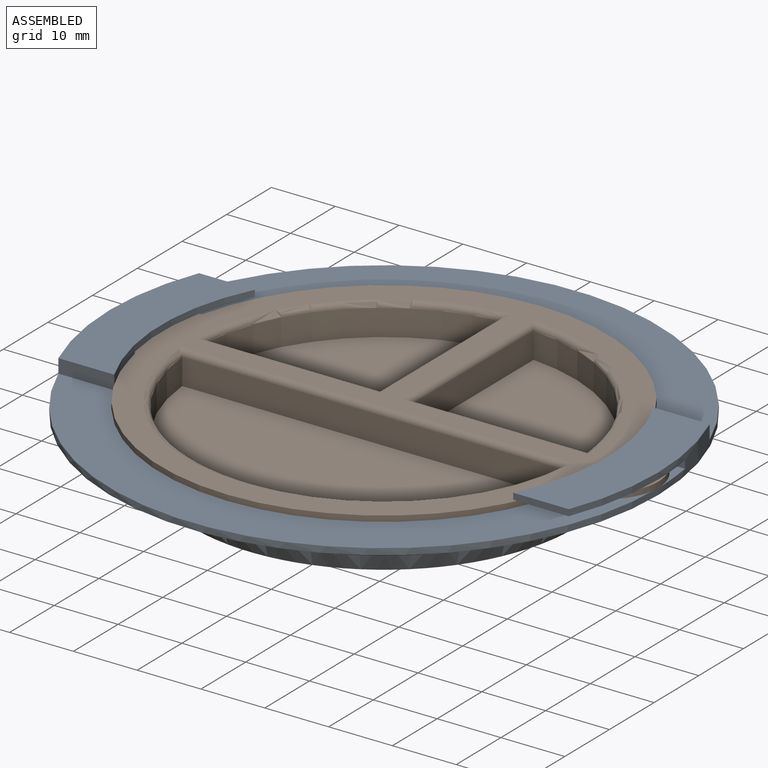
[diagram: assembled view]
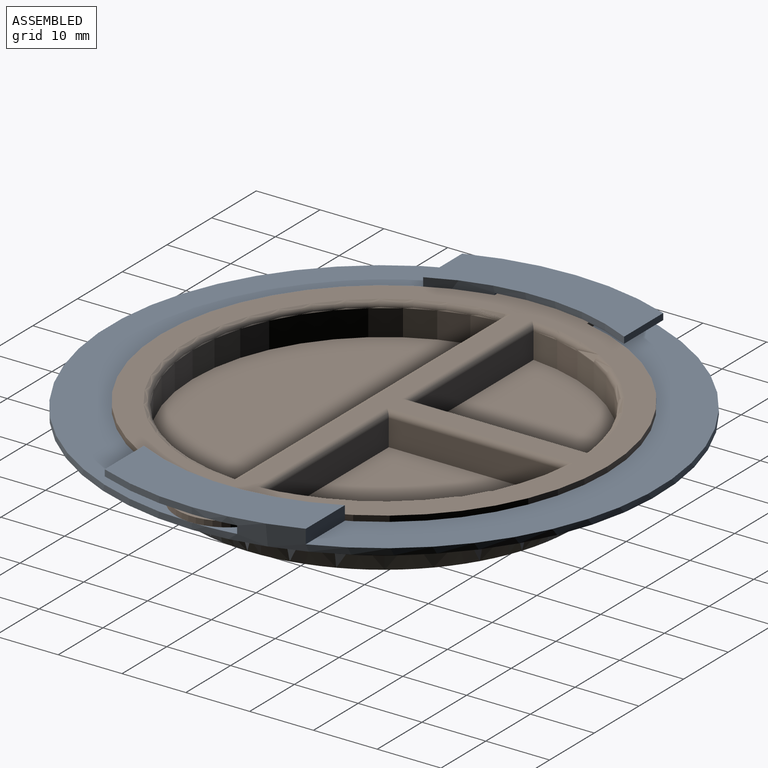
[diagram: assembled view, second angle]
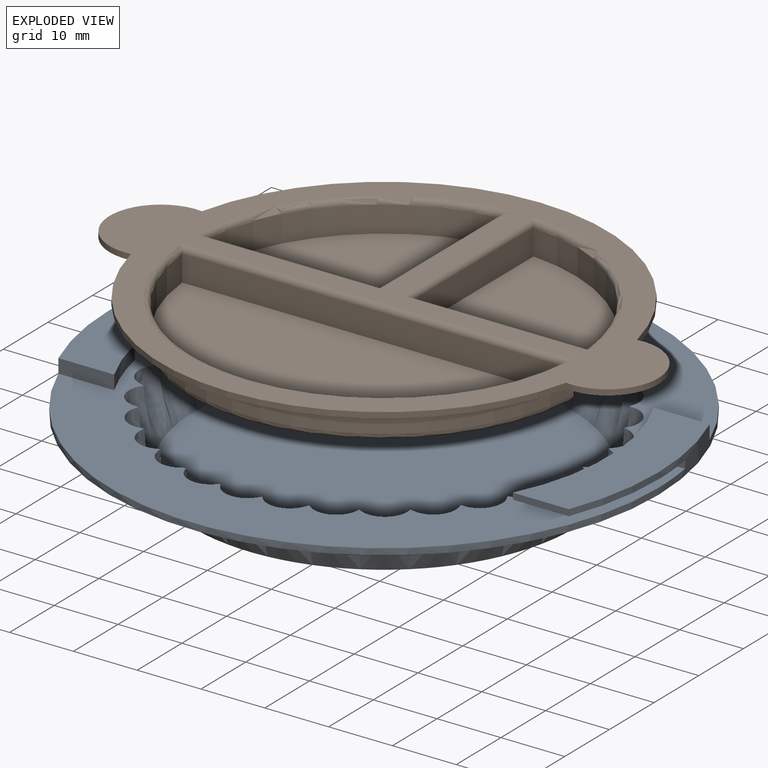
[diagram: exploded view]
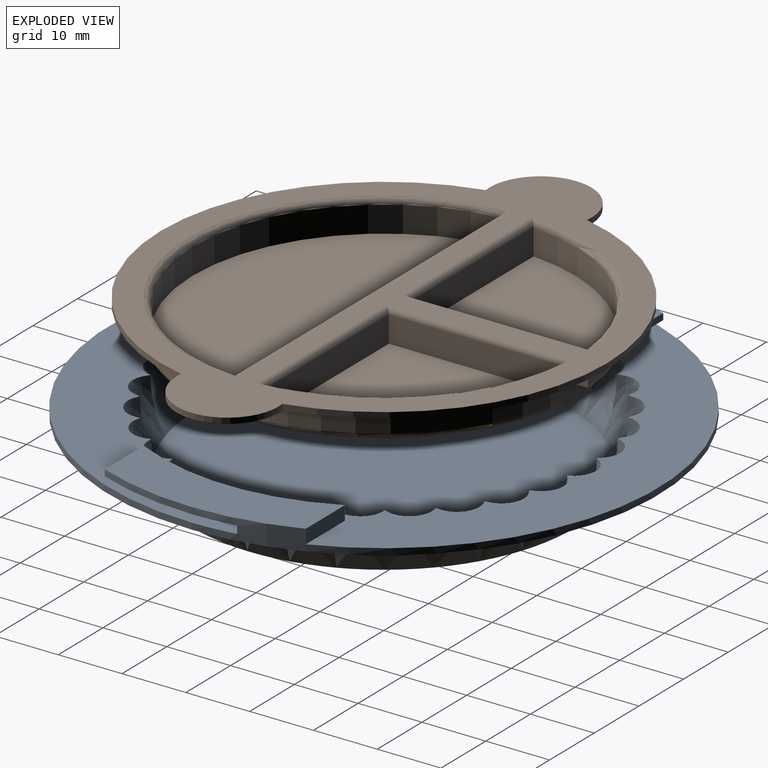
[diagram: exploded view, second angle]
ASSEMBLY  parts=2 mates=2
PART A: 78 faces, bbox 87x87x12.3 mm
  f0: plane 86.13x86.13mm, normal (0,0,1), area 2266.2mm2, adj f2,f3,f4,f5,f6,f7,f8,f9
  f1: plane 59.7x59.63mm, normal (0,0,1), area 2772.5mm2, adj f2,f3,f4,f5,f6,f7,f8,f9
  f2: offset ~10.11x8.49mm, area 65.7mm2, adj f0,f1,f3,f31
  f3: offset ~10.11x8.62mm, area 65.7mm2, adj f0,f1,f2,f4
  f4: offset ~10.11x8.52mm, area 65.7mm2, adj f0,f1,f3,f5
  f5: offset ~10.11x8.15mm, area 65.7mm2, adj f0,f1,f4,f6
  f6: offset ~10.11x7.9mm, area 65.7mm2, adj f0,f1,f5,f7
  f7: offset ~10.11x8.28mm, area 65.7mm2, adj f0,f1,f6,f8
  f8: offset ~10.11x8.59mm, area 65.7mm2, adj f0,f1,f7,f9
  f9: offset ~10.11x8.57mm, area 65.7mm2, adj f0,f1,f8,f10
  f10: offset ~10.11x8.55mm, area 65.7mm2, adj f0,f1,f9,f11
  f11: offset ~10.11x8.61mm, area 65.7mm2, adj f0,f1,f10,f12
  f12: offset ~10.11x8.34mm, area 65.7mm2, adj f0,f1,f11,f13
  f13: offset ~10.11x7.96mm, area 65.7mm2, adj f0,f1,f12,f14
  f14: offset ~10.11x8.11mm, area 65.7mm2, adj f0,f1,f13,f15
  f15: offset ~10.11x8.48mm, area 65.7mm2, adj f0,f1,f14,f16
  f16: offset ~10.11x8.63mm, area 65.7mm2, adj f0,f1,f15,f17
  f17: offset ~10.11x8.49mm, area 65.7mm2, adj f0,f1,f16,f18
  f18: offset ~10.11x8.62mm, area 65.7mm2, adj f0,f1,f17,f19
  f19: offset ~10.11x8.52mm, area 65.7mm2, adj f0,f1,f18,f20
  f20: offset ~10.11x8.15mm, area 65.7mm2, adj f0,f1,f19,f21
  f21: offset ~10.11x7.9mm, area 65.7mm2, adj f0,f1,f20,f22
  f22: offset ~10.11x8.28mm, area 65.7mm2, adj f0,f1,f21,f23
  f23: offset ~10.11x8.59mm, area 65.7mm2, adj f0,f1,f22,f24
  f24: offset ~10.11x8.57mm, area 65.7mm2, adj f0,f1,f23,f25
  f25: offset ~10.11x8.55mm, area 65.7mm2, adj f0,f1,f24,f26
  f26: offset ~10.11x8.61mm, area 65.7mm2, adj f0,f1,f25,f27
  f27: offset ~10.11x8.34mm, area 65.7mm2, adj f0,f1,f26,f28
  f28: offset ~10.11x7.96mm, area 65.7mm2, adj f0,f1,f27,f29
  f29: offset ~10.11x8.11mm, area 65.7mm2, adj f0,f1,f28,f30
  f30: offset ~10.11x8.48mm, area 65.7mm2, adj f0,f1,f29,f31
  f31: offset ~10.11x8.63mm, area 65.7mm2, adj f0,f1,f2,f30
  f32: cylinder r=43mm len=86mm, axis (0,0,1), area 341.1mm2, adj f0,f33,f34,f67,f68,f69,f70,f71
  f33: cylinder r=43mm len=15.75mm, axis (0,0,1), area 16.1mm2, adj f32,f72,f75,f76
  f34: plane 86.01x86.01mm, normal (0,0,-1), area 2298.6mm2, adj f32,f36,f37,f38,f39,f40,f41,f42
  f35: plane 60x60mm, normal (0,0,-1), area 2827.4mm2, adj f36,f37,f38,f39,f40,f41,f42,f43
  f36: bspline ~9.11x7.4mm, area 63mm2, adj f34,f35,f37,f65
  f37: bspline ~8.11x6.86mm, area 63mm2, adj f34,f35,f36,f38
  f38: bspline ~8.11x6.58mm, area 63mm2, adj f34,f35,f37,f39
  f39: bspline ~8.11x6.43mm, area 63mm2, adj f34,f35,f38,f40
  f40: bspline ~9.11x7.34mm, area 63mm2, adj f34,f35,f39,f41
  f41: bspline ~9.11x7.43mm, area 63mm2, adj f34,f35,f40,f42
  f42: bspline ~8.11x6.72mm, area 63mm2, adj f34,f35,f41,f43
  f43: bspline ~8.11x6.73mm, area 63mm2, adj f34,f35,f42,f44
  f44: bspline ~9.11x7.07mm, area 63mm2, adj f34,f35,f43,f45
  f45: bspline ~9.11x7.28mm, area 63mm2, adj f34,f35,f44,f46
  f46: bspline ~8.11x6.37mm, area 63mm2, adj f34,f35,f45,f47
  f47: bspline ~8.11x6.63mm, area 63mm2, adj f34,f35,f46,f48
  f48: bspline ~8.11x6.88mm, area 63mm2, adj f34,f35,f47,f49
  f49: bspline ~9.11x7.37mm, area 63mm2, adj f34,f35,f48,f50
  f50: bspline ~9.11x7.12mm, area 63mm2, adj f34,f35,f49,f51
  f51: bspline ~9.11x7.4mm, area 63mm2, adj f34,f35,f50,f52
  f52: bspline ~8.11x6.86mm, area 63mm2, adj f34,f35,f51,f53
  f53: bspline ~8.11x6.58mm, area 63mm2, adj f34,f35,f52,f54
  f54: bspline ~8.11x6.43mm, area 63mm2, adj f34,f35,f53,f55
  f55: bspline ~9.11x7.34mm, area 63mm2, adj f34,f35,f54,f56
  f56: bspline ~9.11x6.9mm, area 63mm2, adj f34,f35,f55,f57
  f57: bspline ~8.11x6.72mm, area 63mm2, adj f34,f35,f56,f58
  f58: bspline ~8.11x6.73mm, area 63mm2, adj f34,f35,f57,f59
  f59: bspline ~9.11x7.07mm, area 63mm2, adj f34,f35,f58,f60
  f60: bspline ~9.11x7.28mm, area 63mm2, adj f34,f35,f59,f61
  f61: bspline ~8.11x6.37mm, area 63mm2, adj f34,f35,f60,f62
  f62: bspline ~8.11x6.63mm, area 63mm2, adj f34,f35,f61,f63
  f63: bspline ~8.11x6.88mm, area 63mm2, adj f34,f35,f62,f64
  f64: bspline ~9.11x7.62mm, area 63mm2, adj f34,f35,f63,f65
  f65: bspline ~9.11x7.12mm, area 63mm2, adj f34,f35,f36,f64
  f66: cylinder r=35mm len=31.5mm, axis (0,0,-1), area 44.2mm2, adj f0,f67,f68,f69,f70,f71
  f67: plane 8.76x2.2mm, normal (0,-1,0), area 19.3mm2, adj f0,f32,f66,f69
  f68: plane 8.76x1mm, normal (0,1,0), area 8.8mm2, adj f32,f66,f69,f70
  f69: plane 31.5x11.74mm, normal (0,0,1), area 259.5mm2, adj f32,f66,f67,f68
  f70: plane 22.46x11.74mm, normal (0,0,-1), area 183.7mm2, adj f32,f66,f68,f71
  f71: plane 8.12x1.2mm, normal (0,1,0), area 9.7mm2, adj f0,f32,f66,f70
  f72: plane 8.76x1mm, normal (0,-1,0), area 8.8mm2, adj f33,f73,f75,f76
  f73: cylinder r=35mm len=31.5mm, axis (0,0,-1), area 44.2mm2, adj f0,f72,f74,f75,f76,f77
  f74: plane 8.76x2.2mm, normal (0,1,0), area 19.3mm2, adj f0,f32,f73,f75
  f75: plane 31.5x11.74mm, normal (0,0,1), area 259.5mm2, adj f32,f33,f72,f73,f74
  f76: plane 22.46x11.74mm, normal (0,0,-1), area 183.7mm2, adj f32,f33,f72,f73,f77
  f77: plane 8.12x1.2mm, normal (0,-1,0), area 9.7mm2, adj f0,f32,f73,f76
PART B: 52 faces, bbox 86x70.2x5.9 mm
  f0: plane 86x70mm, normal (0,0,-1), area 1022.6mm2, adj f2,f3,f4,f5,f28,f29,f32,f33
  f1: plane 86x70mm, normal (0,0,1), area 1354.7mm2, adj f2,f3,f4,f5,f44,f45,f46,f47
  f2: cylinder r=8mm len=16mm, axis (0,0,1), area 24mm2, adj f0,f1,f3,f5
  f3: cylinder r=35mm len=68.17mm, axis (0,0,1), area 83.6mm2, adj f0,f1,f2,f4
  f4: cylinder r=8mm len=16mm, axis (0,0,1), area 24mm2, adj f0,f1,f3,f5
  f5: cylinder r=35mm len=68.17mm, axis (0,0,1), area 83.6mm2, adj f0,f1,f2,f4
  f6: plane 27.4x4.11mm, normal (-1,0,0), area 112.6mm2, adj f7,f8,f27,f49
  f7: cylinder r=30mm len=27.4mm, axis (0,0,1), area 173.1mm2, adj f6,f8,f27,f51
  f8: plane 27.4x4.11mm, normal (0,1,0), area 112.6mm2, adj f6,f7,f27,f50
  f9: plane 27.4x4.11mm, normal (1,0,0), area 112.6mm2, adj f10,f11,f26,f47
  f10: plane 27.4x4.11mm, normal (0,1,0), area 112.6mm2, adj f9,f11,f26,f48
  f11: cylinder r=30mm len=27.4mm, axis (0,0,1), area 173.1mm2, adj f9,f10,f26,f46
  f12: plane 59.79x4.11mm, normal (0,-1,0), area 245.7mm2, adj f13,f25,f44
  f13: cylinder r=30mm len=59.79mm, axis (0,0,1), area 366.8mm2, adj f12,f25,f45
  f14: plane 27.4x27.4mm, normal (0,0,-1), area 563.3mm2, adj f35,f36,f37
  f15: plane 29.24x3.22mm, normal (-1,0,0), area 94.1mm2, adj f16,f17,f33,f36
  f16: plane 29.24x3.22mm, normal (0,-1,0), area 94.1mm2, adj f15,f17,f34,f37
  f17: cylinder r=30.89mm len=29.24mm, axis (0,0,1), area 145.9mm2, adj f15,f16,f32,f35
  f18: cylinder r=30.89mm len=61.7mm, axis (0,0,1), area 302.1mm2, adj f19,f29,f31
  f19: plane 61.7x3.22mm, normal (0,1,0), area 198.7mm2, adj f18,f28,f30
  f20: plane 59.79x27.5mm, normal (0,0,-1), area 1263.9mm2, adj f30,f31
  f21: plane 29.24x3.22mm, normal (1,0,0), area 94.1mm2, adj f22,f23,f39,f42
  f22: plane 29.24x3.22mm, normal (0,-1,0), area 94.1mm2, adj f21,f23,f40,f43
  f23: cylinder r=30.89mm len=29.24mm, axis (0,0,1), area 145.9mm2, adj f21,f22,f38,f41
  f24: plane 27.4x27.4mm, normal (0,0,-1), area 563.3mm2, adj f41,f42,f43
  f25: plane 59.79x27.5mm, normal (0,0,1), area 1263.9mm2, adj f12,f13
  f26: plane 27.4x27.4mm, normal (0,0,1), area 563.3mm2, adj f9,f10,f11
  f27: plane 27.4x27.4mm, normal (0,0,1), area 563.3mm2, adj f6,f7,f8
  f28: cylinder r=0.89mm len=63.54mm, axis (-1,0,0), area 87.2mm2, adj f0,f19,f29
  f29: torus R=31.78mm, axis (0,0,1), area 133.5mm2, adj f0,f18,f28
  f30: cylinder r=0.89mm len=61.7mm, axis (-1,0,0), area 85.3mm2, adj f19,f20,f31
  f31: torus R=30mm, axis (0,0,-1), area 128.8mm2, adj f18,f20,f30
  f32: torus R=31.78mm, axis (0,0,1), area 64.9mm2, adj f0,f17,f33,f34
  f33: cylinder r=0.89mm len=31.05mm, axis (0,-1,0), area 41.8mm2, adj f0,f15,f32,f34
  f34: cylinder r=0.89mm len=31.05mm, axis (1,0,0), area 41.8mm2, adj f0,f16,f32,f33
  f35: torus R=30mm, axis (0,0,-1), area 61.7mm2, adj f14,f17,f36,f37
  f36: cylinder r=0.89mm len=29.24mm, axis (0,-1,0), area 39.9mm2, adj f14,f15,f35,f37
  f37: cylinder r=0.89mm len=29.24mm, axis (1,0,0), area 39.9mm2, adj f14,f16,f35,f36
  f38: torus R=31.78mm, axis (0,0,1), area 64.9mm2, adj f0,f23,f39,f40
  f39: cylinder r=0.89mm len=31.05mm, axis (0,1,0), area 41.8mm2, adj f0,f21,f38,f40
  f40: cylinder r=0.89mm len=31.05mm, axis (1,0,0), area 41.8mm2, adj f0,f22,f38,f39
  f41: torus R=30mm, axis (0,0,-1), area 61.7mm2, adj f23,f24,f42,f43
  f42: cylinder r=0.89mm len=29.24mm, axis (0,1,0), area 39.9mm2, adj f21,f24,f41,f43
  f43: cylinder r=0.89mm len=29.24mm, axis (1,0,0), area 39.9mm2, adj f22,f24,f41,f42
  f44: cylinder r=0.89mm len=61.7mm, axis (1,0,0), area 84.6mm2, adj f1,f12,f45
  f45: torus R=30.89mm, axis (0,0,1), area 127.1mm2, adj f1,f13,f44
  f46: torus R=30.89mm, axis (0,0,1), area 60.5mm2, adj f1,f11,f47,f48
  f47: cylinder r=0.89mm len=29.24mm, axis (0,1,0), area 39.2mm2, adj f1,f9,f46,f48
  f48: cylinder r=0.89mm len=29.24mm, axis (-1,0,0), area 39.2mm2, adj f1,f10,f46,f47
  f49: cylinder r=0.89mm len=29.24mm, axis (0,-1,0), area 39.2mm2, adj f1,f6,f50,f51
  f50: cylinder r=0.89mm len=29.24mm, axis (-1,0,0), area 39.2mm2, adj f1,f8,f49,f51
  f51: torus R=30.89mm, axis (0,0,1), area 60.5mm2, adj f1,f7,f49,f50
PLACE A t=(48.52,134.51,17.57)mm fixed
PLACE B rot(axis=(0,0,1),0deg) t=(-76.48,134.51,17.57)mm
MATE revolute B.f5 <-> A.f32  axis (0,0,-1) through (-76.48,134.51,16.68)mm
MATE parallel B.f3 <-> A.f66  axis (0,0,-1) through (-76.48,134.51,16.68)mm
